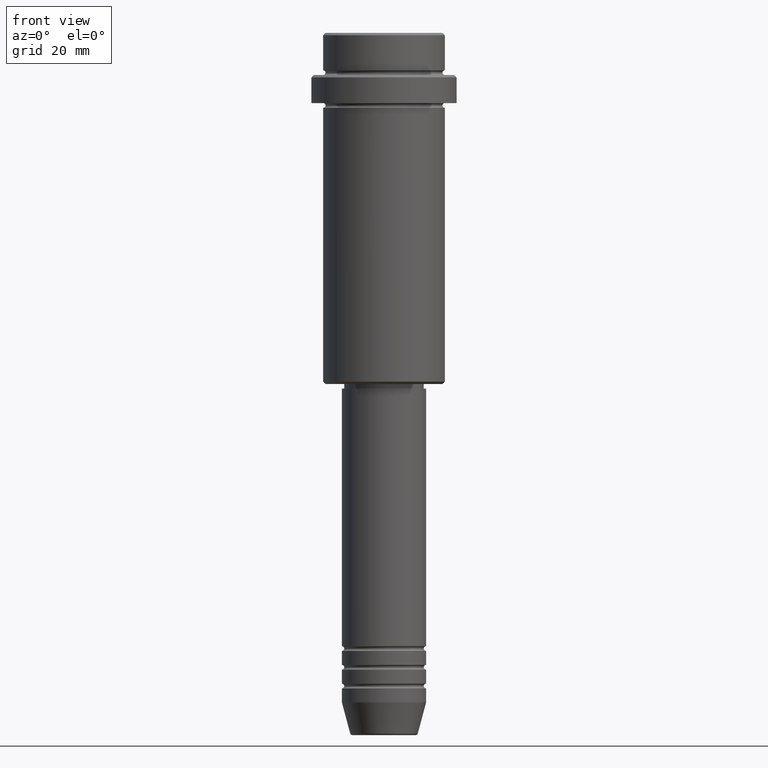
[diagram: clean part render]
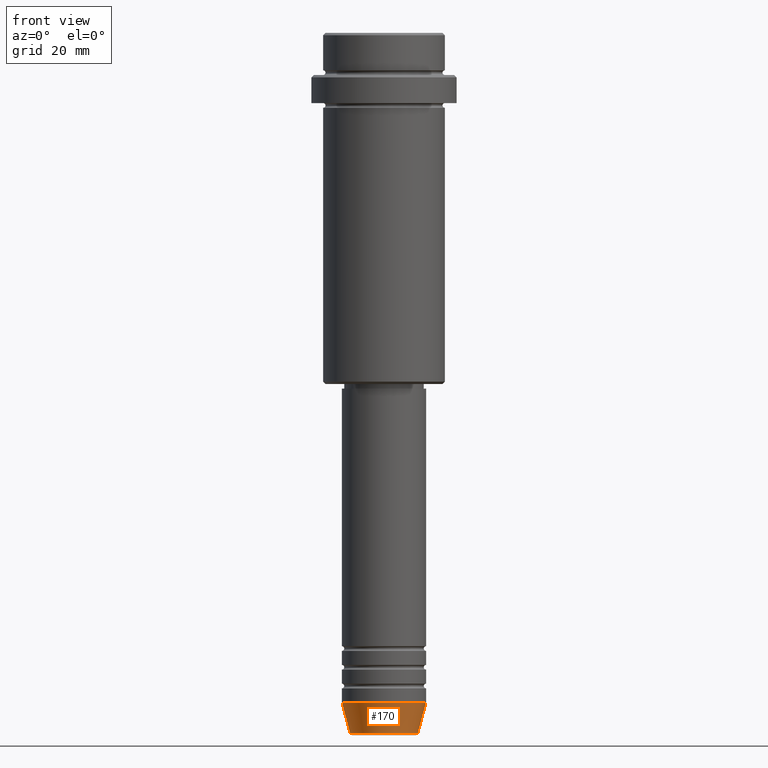
[diagram: same view with one face highlighted and labeled with its STEP entity id]
A machine part, front view. The second image highlights one B-rep face of the part: STEP entity #170.
In plain terms, the highlighted conical surface has half-angle 15 deg.
Its self-contained STEP definition (entity closure, byte-faithful):
#56 = ORIENTED_EDGE ( 'NONE', *, *, #1368, .F. ) ;
#72 = EDGE_CURVE ( 'NONE', #865, #270, #1010, .T. ) ;
#114 = AXIS2_PLACEMENT_3D ( 'NONE', #474, #1042, #172 ) ;
#125 = VERTEX_POINT ( 'NONE', #219 ) ;
#134 = CARTESIAN_POINT ( 'NONE',  ( 0.000000000000000000, 0.000000000000000000, -143.0000000000000000 ) ) ;
#140 = DIRECTION ( 'NONE',  ( -0.000000000000000000, -0.000000000000000000, 1.000000000000000000 ) ) ;
#168 = DIRECTION ( 'NONE',  ( -0.000000000000000000, -0.000000000000000000, 1.000000000000000000 ) ) ;
#170 = ADVANCED_FACE ( 'NONE', ( #806 ), #739, .T. ) ;
#172 = DIRECTION ( 'NONE',  ( 1.000000000000000000, 0.000000000000000000, 0.000000000000000000 ) ) ;
#195 = LINE ( 'NONE', #866, #996 ) ;
#219 = CARTESIAN_POINT ( 'NONE',  ( -7.223655072137189492, 9.934123627281765110E-16, -149.6294095225512706 ) ) ;
#224 = DIRECTION ( 'NONE',  ( 0.2588190451025213501, 0.000000000000000000, 0.9659258262890680902 ) ) ;
#270 = VERTEX_POINT ( 'NONE', #1399 ) ;
#271 = ORIENTED_EDGE ( 'NONE', *, *, #1244, .F. ) ;
#311 = ORIENTED_EDGE ( 'NONE', *, *, #773, .T. ) ;
#339 = DIRECTION ( 'NONE',  ( 1.000000000000000000, 0.000000000000000000, 0.000000000000000000 ) ) ;
#362 = DIRECTION ( 'NONE',  ( 1.000000000000000000, 0.000000000000000000, 0.000000000000000000 ) ) ;
#367 = VECTOR ( 'NONE', #224, 1000.000000000000000 ) ;
#423 = CIRCLE ( 'NONE', #1221, 9.000000000000000000 ) ;
#466 = CARTESIAN_POINT ( 'NONE',  ( 9.000000000000000000, 0.000000000000000000, -143.0000000000000000 ) ) ;
#474 = CARTESIAN_POINT ( 'NONE',  ( 0.000000000000000000, 0.000000000000000000, -143.0000000000000000 ) ) ;
#533 = AXIS2_PLACEMENT_3D ( 'NONE', #708, #168, #339 ) ;
#548 = CARTESIAN_POINT ( 'NONE',  ( 7.223655072137188604, 0.000000000000000000, -149.6294095225512706 ) ) ;
#708 = CARTESIAN_POINT ( 'NONE',  ( 0.000000000000000000, 0.000000000000000000, -149.6294095225512706 ) ) ;
#739 = CONICAL_SURFACE ( 'NONE', #114, 9.000000000000000000, 0.2617993877991500740 ) ;
#773 = EDGE_CURVE ( 'NONE', #125, #865, #971, .T. ) ;
#806 = FACE_OUTER_BOUND ( 'NONE', #1215, .T. ) ;
#865 = VERTEX_POINT ( 'NONE', #548 ) ;
#866 = CARTESIAN_POINT ( 'NONE',  ( -9.000000000000000000, 1.102182119232617714E-15, -143.0000000000000000 ) ) ;
#870 = VERTEX_POINT ( 'NONE', #1191 ) ;
#971 = CIRCLE ( 'NONE', #533, 7.223655072137188604 ) ;
#996 = VECTOR ( 'NONE', #1300, 1000.000000000000000 ) ;
#1010 = LINE ( 'NONE', #466, #367 ) ;
#1042 = DIRECTION ( 'NONE',  ( -0.000000000000000000, -0.000000000000000000, 1.000000000000000000 ) ) ;
#1191 = CARTESIAN_POINT ( 'NONE',  ( -9.000000000000000000, 1.102182119232617714E-15, -143.0000000000000000 ) ) ;
#1215 = EDGE_LOOP ( 'NONE', ( #271, #311, #1271, #56 ) ) ;
#1221 = AXIS2_PLACEMENT_3D ( 'NONE', #134, #140, #362 ) ;
#1244 = EDGE_CURVE ( 'NONE', #125, #870, #195, .T. ) ;
#1271 = ORIENTED_EDGE ( 'NONE', *, *, #72, .T. ) ;
#1300 = DIRECTION ( 'NONE',  ( -0.2588190451025213501, 3.169619151431772337E-17, 0.9659258262890680902 ) ) ;
#1368 = EDGE_CURVE ( 'NONE', #870, #270, #423, .T. ) ;
#1399 = CARTESIAN_POINT ( 'NONE',  ( 9.000000000000000000, 0.000000000000000000, -143.0000000000000000 ) ) ;